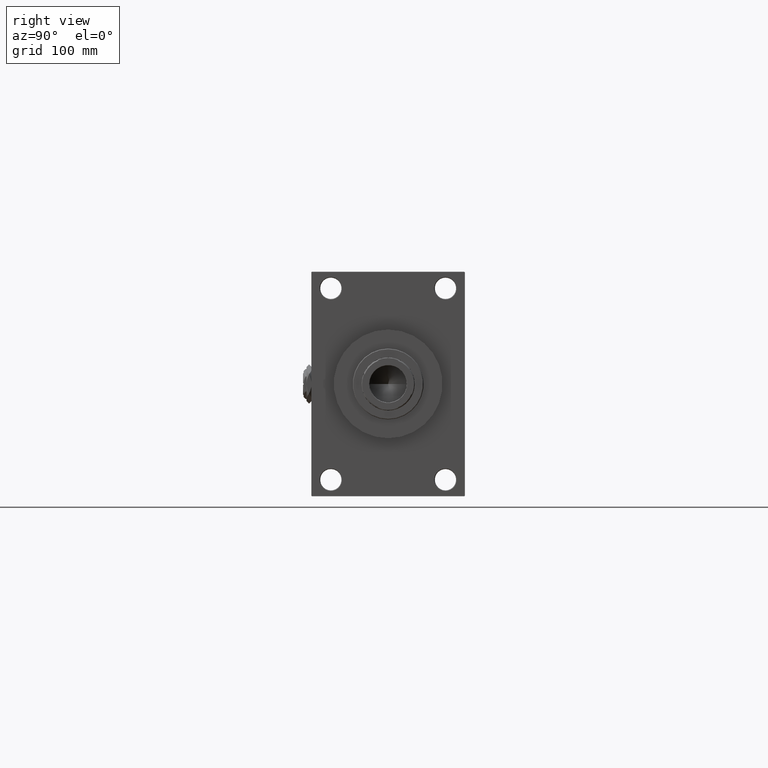
[diagram: clean part render]
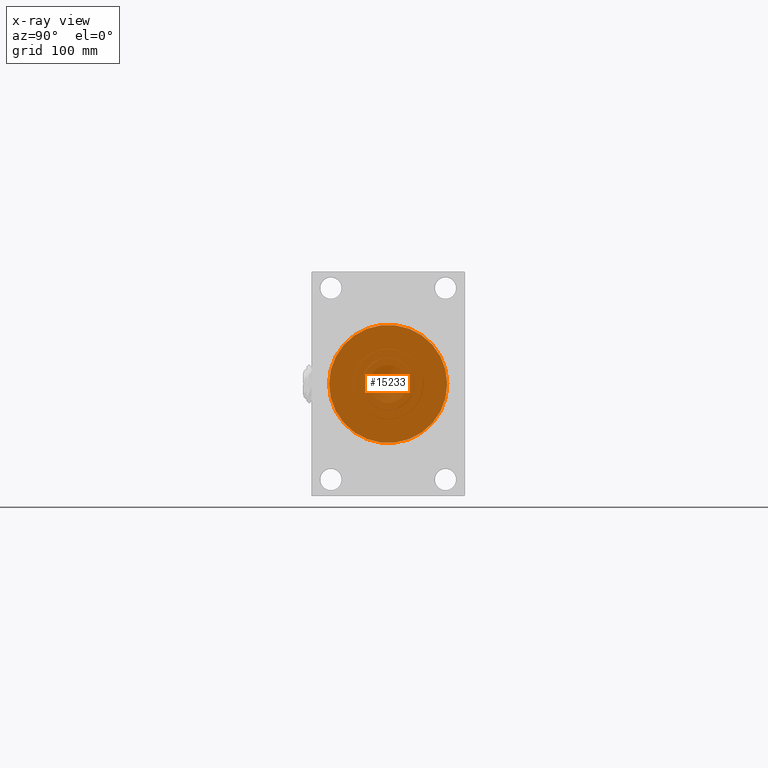
[diagram: x-ray — body ghosted, one internal face saturated and labeled with its STEP entity id]
A machine part, right view, then the same camera in x-ray: the body is ghosted and one INTERNAL B-rep face — a face not visible from any outside direction — is saturated and labeled: STEP entity #15233.
In plain terms, the highlighted planar face has unit normal (1, 0, 0).
Its self-contained STEP definition (entity closure, byte-faithful):
#1219 = EDGE_CURVE ( 'NONE', #37424, #41735, #17966, .T. ) ;
#3564 = DIRECTION ( 'NONE',  ( 1.000000000000000000, 0.000000000000000000, 0.000000000000000000 ) ) ;
#4316 = DIRECTION ( 'NONE',  ( 1.000000000000000000, 0.000000000000000000, 0.000000000000000000 ) ) ;
#7345 = DIRECTION ( 'NONE',  ( 0.000000000000000000, 0.000000000000000000, 1.000000000000000000 ) ) ;
#12797 = PLANE ( 'NONE',  #33651 ) ;
#13292 = CARTESIAN_POINT ( 'NONE',  ( 0.000000000000000000, 0.000000000000000000, 0.000000000000000000 ) ) ;
#14857 = EDGE_CURVE ( 'NONE', #41735, #37424, #34440, .T. ) ;
#15233 = ADVANCED_FACE ( 'NONE', ( #47781 ), #12797, .F. ) ;
#16599 = ORIENTED_EDGE ( 'NONE', *, *, #14857, .F. ) ;
#17966 = CIRCLE ( 'NONE', #49361, 50.00000000000000000 ) ;
#19160 = AXIS2_PLACEMENT_3D ( 'NONE', #39061, #7345, #3564 ) ;
#26994 = CARTESIAN_POINT ( 'NONE',  ( 0.000000000000000000, 0.000000000000000000, 0.000000000000000000 ) ) ;
#28640 = DIRECTION ( 'NONE',  ( 0.000000000000000000, 0.000000000000000000, 1.000000000000000000 ) ) ;
#29094 = CARTESIAN_POINT ( 'NONE',  ( 50.00000000000000000, 6.123233995736766085E-15, 0.000000000000000000 ) ) ;
#30414 = EDGE_LOOP ( 'NONE', ( #16599, #38288 ) ) ;
#30667 = CARTESIAN_POINT ( 'NONE',  ( -50.00000000000000000, 0.000000000000000000, 0.000000000000000000 ) ) ;
#33651 = AXIS2_PLACEMENT_3D ( 'NONE', #13292, #28640, #44019 ) ;
#34440 = CIRCLE ( 'NONE', #19160, 50.00000000000000000 ) ;
#37424 = VERTEX_POINT ( 'NONE', #29094 ) ;
#38288 = ORIENTED_EDGE ( 'NONE', *, *, #1219, .F. ) ;
#38816 = DIRECTION ( 'NONE',  ( 0.000000000000000000, 0.000000000000000000, 1.000000000000000000 ) ) ;
#39061 = CARTESIAN_POINT ( 'NONE',  ( 0.000000000000000000, 0.000000000000000000, 0.000000000000000000 ) ) ;
#41735 = VERTEX_POINT ( 'NONE', #30667 ) ;
#44019 = DIRECTION ( 'NONE',  ( 1.000000000000000000, 0.000000000000000000, -0.000000000000000000 ) ) ;
#47781 = FACE_OUTER_BOUND ( 'NONE', #30414, .T. ) ;
#49361 = AXIS2_PLACEMENT_3D ( 'NONE', #26994, #38816, #4316 ) ;